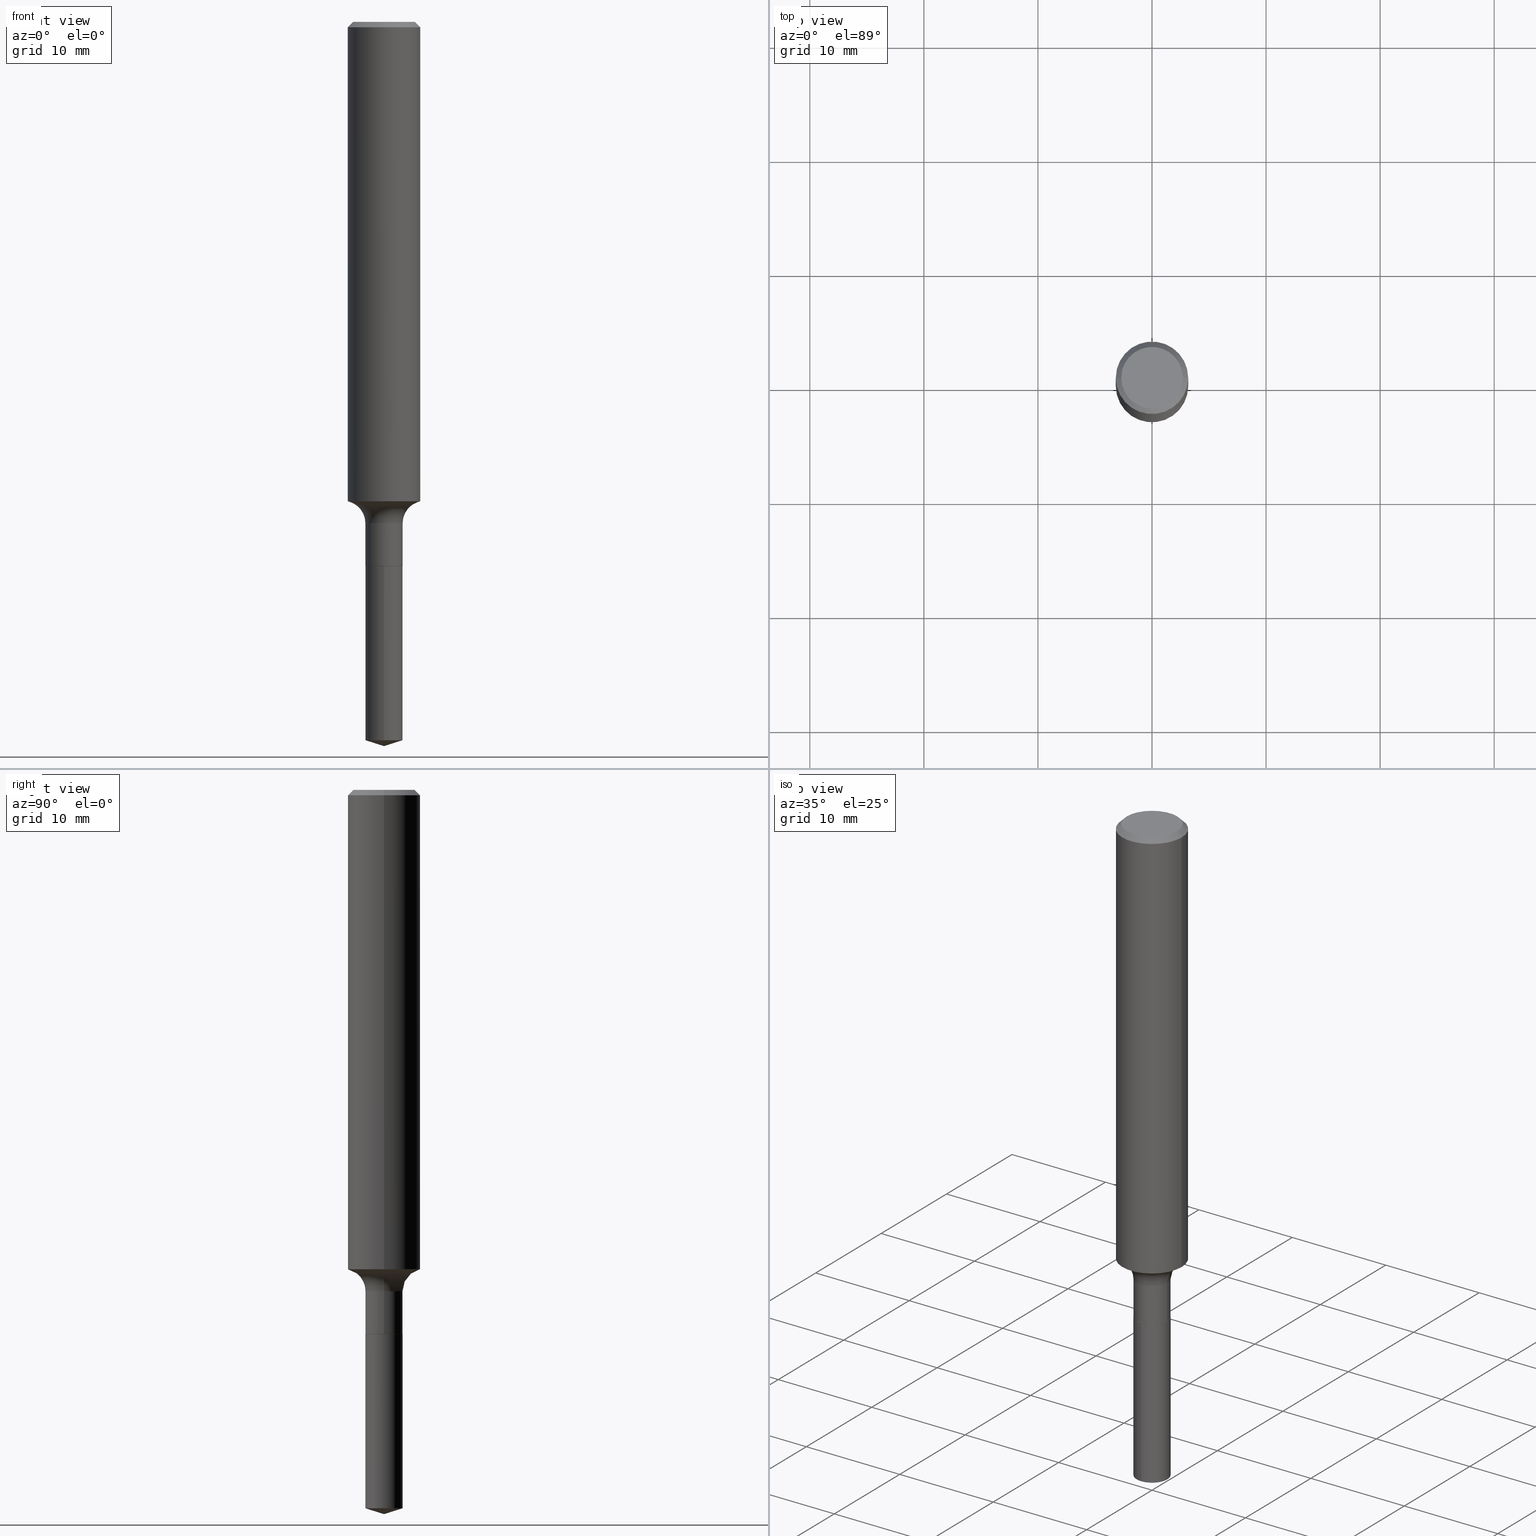
[diagram: canonical four-view strip — front | top / right | iso, engineering-drawing reading convention]
A machine part, canonical four-view strip (front | top / right | iso — engineering-drawing reading convention). The complete STEP part file that produces these views, byte-faithful:
ISO-10303-21;
HEADER;
FILE_DESCRIPTION (( 'STEP AP203' ),
    '1' );
FILE_NAME ('50005.STEP',
    '2024-04-19T12:44:49',
    ( '' ),
    ( '' ),
    'SwSTEP 2.0',
    'SolidWorks 2023',
    '' );
FILE_SCHEMA (( 'CONFIG_CONTROL_DESIGN' ));
ENDSEC;

DATA;
#1 = CARTESIAN_POINT ( 'NONE',  ( 4.593813152418779608E-29, -6.558747695016850021E-15, -1.878500000000000281 ) ) ;
#2 = DIRECTION ( 'NONE',  ( -6.982962677686268288E-15, -1.000000000000000000, 3.500519750498728887E-15 ) ) ;
#3 = CIRCLE ( 'NONE', #357, 0.06424999999999997380 ) ;
#4 = CARTESIAN_POINT ( 'NONE',  ( 0.06424999999999997380, -6.491362105177175250E-15, -1.730700000000000127 ) ) ;
#5 = CYLINDRICAL_SURFACE ( 'NONE', #123, 0.06424999999999998768 ) ;
#6 = DIRECTION ( 'NONE',  ( -2.445468806185136597E-29, 3.491481338843145583E-15, 1.000000000000000000 ) ) ;
#7 = CARTESIAN_POINT ( 'NONE',  ( 0.000000000000000000, 0.000000000000000000, 0.000000000000000000 ) ) ;
#8 = ADVANCED_FACE ( 'NONE', ( #372 ), #253, .T. ) ;
#9 = CARTESIAN_POINT ( 'NONE',  ( -0.1250000000000001110, 8.881784197001260212E-16, -6.148668862818637832E-30 ) ) ;
#10 = AXIS2_PLACEMENT_3D ( 'NONE', #38, #298, #337 ) ;
#11 = AXIS2_PLACEMENT_3D ( 'NONE', #235, #6, #391 ) ;
#12 = EDGE_CURVE ( 'NONE', #311, #251, #222, .T. ) ;
#13 = SECURITY_CLASSIFICATION_LEVEL ( 'unclassified' ) ;
#14 = ORIENTED_EDGE ( 'NONE', *, *, #242, .F. ) ;
#15 = ADVANCED_FACE ( 'NONE', ( #293 ), #32, .T. ) ;
#16 = PERSON_AND_ORGANIZATION ( #385, #321 ) ;
#17 = AXIS2_PLACEMENT_3D ( 'NONE', #124, #83, #86 ) ;
#18 = EDGE_LOOP ( 'NONE', ( #212, #54, #273, #468 ) ) ;
#19 = DATE_AND_TIME ( #59, #72 ) ;
#20 = ORIENTED_EDGE ( 'NONE', *, *, #326, .F. ) ;
#21 = PERSON_AND_ORGANIZATION ( #385, #321 ) ;
#22 = EDGE_CURVE ( 'NONE', #247, #245, #24, .T. ) ;
#23 = ORIENTED_EDGE ( 'NONE', *, *, #12, .T. ) ;
#24 = CIRCLE ( 'NONE', #144, 0.06425000000000000155 ) ;
#25 = VECTOR ( 'NONE', #236, 39.37007874015748143 ) ;
#26 = EDGE_LOOP ( 'NONE', ( #133, #62, #216, #207 ) ) ;
#27 = DIRECTION ( 'NONE',  ( 1.000000000000000000, -6.982962677686266711E-15, 4.876153107228683844E-29 ) ) ;
#28 = CARTESIAN_POINT ( 'NONE',  ( 4.046349384515295800E-29, -5.777114527383200552E-15, -1.654631363230303576 ) ) ;
#29 = EDGE_CURVE ( 'NONE', #396, #369, #168, .T. ) ;
#30 = CARTESIAN_POINT ( 'NONE',  ( -4.486553520412820437E-16, -0.06425000000000867517, -2.479742052814525533 ) ) ;
#31 = FACE_OUTER_BOUND ( 'NONE', #437, .T. ) ;
#32 = CYLINDRICAL_SURFACE ( 'NONE', #287, 0.06425000000000000155 ) ;
#33 = CIRCLE ( 'NONE', #17, 0.06425000000000000155 ) ;
#34 = CARTESIAN_POINT ( 'NONE',  ( 4.593813152418779608E-29, -6.558747695016850021E-15, -1.878500000000000281 ) ) ;
#35 = CARTESIAN_POINT ( 'NONE',  ( -8.782355238379108562E-48, 1.253887571509288664E-33, 3.591276738499616421E-19 ) ) ;
#36 = FACE_OUTER_BOUND ( 'NONE', #430, .T. ) ;
#37 = DIMENSIONAL_EXPONENTS ( 1.000000000000000000, 0.000000000000000000, 0.000000000000000000, 0.000000000000000000, 0.000000000000000000, 0.000000000000000000, 0.000000000000000000 ) ;
#38 = CARTESIAN_POINT ( 'NONE',  ( 4.593813152418779608E-29, -6.558747695016850021E-15, -1.878500000000000281 ) ) ;
#39 = DIRECTION ( 'NONE',  ( -6.982962677686268288E-15, -1.000000000000000000, 3.500519750498728887E-15 ) ) ;
#40 = DIRECTION ( 'NONE',  ( 1.000000000000000000, -6.982962677686270655E-15, 0.000000000000000000 ) ) ;
#41 = VECTOR ( 'NONE', #427, 39.37007874015748143 ) ;
#42 = DIRECTION ( 'NONE',  ( -2.438088387897960049E-29, 3.491481338843145188E-15, 1.000000000000000000 ) ) ;
#43 = CYLINDRICAL_SURFACE ( 'NONE', #445, 0.06424999999999998768 ) ;
#44 = CARTESIAN_POINT ( 'NONE',  ( 4.592590418015686246E-29, -6.557001954347427728E-15, -1.878000000000000114 ) ) ;
#45 = DIRECTION ( 'NONE',  ( 0.7071067811864147901, -2.468850131080866299E-15, 0.7071067811866802444 ) ) ;
#46 = CARTESIAN_POINT ( 'NONE',  ( 4.565237077259252214E-16, 0.06424999999999345124, -1.878500000000000503 ) ) ;
#47 = AXIS2_PLACEMENT_3D ( 'NONE', #339, #485, #147 ) ;
#48 = CIRCLE ( 'NONE', #214, 0.07800000000000006928 ) ;
#49 = EDGE_CURVE ( 'NONE', #482, #224, #478, .T. ) ;
#50 = VERTEX_POINT ( 'NONE', #259 ) ;
#51 = EDGE_LOOP ( 'NONE', ( #257, #137, #60, #14 ) ) ;
#52 = COORDINATED_UNIVERSAL_TIME_OFFSET ( 5, 0, .BEHIND. ) ;
#53 = AXIS2_PLACEMENT_3D ( 'NONE', #152, #301, #277 ) ;
#54 = ORIENTED_EDGE ( 'NONE', *, *, #94, .T. ) ;
#55 = COORDINATED_UNIVERSAL_TIME_OFFSET ( 5, 0, .BEHIND. ) ;
#56 = ADVANCED_FACE ( 'NONE', ( #105 ), #412, .F. ) ;
#57 = DIRECTION ( 'NONE',  ( -2.445468806185136877E-29, 3.491481338843145188E-15, 1.000000000000000000 ) ) ;
#58 = ORIENTED_EDGE ( 'NONE', *, *, #90, .F. ) ;
#59 = CALENDAR_DATE ( 2024, 19, 4 ) ;
#60 = ORIENTED_EDGE ( 'NONE', *, *, #220, .T. ) ;
#61 = CC_DESIGN_APPROVAL ( #211, ( #371 ) ) ;
#62 = ORIENTED_EDGE ( 'NONE', *, *, #380, .T. ) ;
#63 = ADVANCED_BREP_SHAPE_REPRESENTATION ( '50005', ( #456, #454, #486 ), #436 ) ;
#64 = EDGE_CURVE ( 'NONE', #251, #311, #424, .T. ) ;
#65 = ORIENTED_EDGE ( 'NONE', *, *, #173, .F. ) ;
#66 = DIRECTION ( 'NONE',  ( -2.445382875170297067E-29, 3.491604396947285962E-15, 1.000000000000000000 ) ) ;
#67 = CARTESIAN_POINT ( 'NONE',  ( -0.06424999999999998768, 4.565237077258642819E-16, -3.160415795488776479E-30 ) ) ;
#68 = DIRECTION ( 'NONE',  ( 1.000000000000000000, -6.982962677686272233E-15, 0.000000000000000000 ) ) ;
#69 = CARTESIAN_POINT ( 'NONE',  ( 4.565237077259102330E-16, 0.06424999999999345124, -1.878500000000000503 ) ) ;
#70 = AXIS2_PLACEMENT_3D ( 'NONE', #268, #382, #229 ) ;
#71 = DIRECTION ( 'NONE',  ( -6.982962677686265922E-15, -1.000000000000000000, 0.000000000000000000 ) ) ;
#72 = LOCAL_TIME ( 8, 44, 49.00000000000000000, #201 ) ;
#73 = EDGE_CURVE ( 'NONE', #451, #330, #205, .T. ) ;
#74 = CARTESIAN_POINT ( 'NONE',  ( 4.593813152418779608E-29, -6.558747695016850021E-15, -1.878500000000000281 ) ) ;
#75 = ADVANCED_FACE ( 'NONE', ( #348 ), #381, .F. ) ;
#76 = DIRECTION ( 'NONE',  ( 6.982962677686265922E-15, 1.000000000000000000, -3.491604396947285962E-15 ) ) ;
#77 = CARTESIAN_POINT ( 'NONE',  ( 6.113457187925742388E-29, -8.729010992368214905E-15, -2.500000000000000000 ) ) ;
#78 = CARTESIAN_POINT ( 'NONE',  ( -0.06424999999999998768, -5.843330646015765814E-15, -1.878000000000000114 ) ) ;
#79 = CARTESIAN_POINT ( 'NONE',  ( 6.113782861698965829E-29, -8.728548663070960218E-15, -2.500000000000000000 ) ) ;
#80 = CARTESIAN_POINT ( 'NONE',  ( 0.000000000000000000, 0.000000000000000000, 0.000000000000000000 ) ) ;
#81 = AXIS2_PLACEMENT_3D ( 'NONE', #254, #300, #449 ) ;
#82 = AXIS2_PLACEMENT_3D ( 'NONE', #315, #359, #467 ) ;
#83 = DIRECTION ( 'NONE',  ( -2.445382875170296787E-29, 3.491604396947285962E-15, 1.000000000000000000 ) ) ;
#84 = PRODUCT_RELATED_PRODUCT_CATEGORY ( 'detail', '', ( #417 ) ) ;
#85 = ORIENTED_EDGE ( 'NONE', *, *, #393, .T. ) ;
#86 = DIRECTION ( 'NONE',  ( -6.982962677686265922E-15, -1.000000000000000000, 4.251903492084456561E-15 ) ) ;
#87 = CARTESIAN_POINT ( 'NONE',  ( -0.06375000000000000111, -6.103127473795674352E-15, -1.878500000000000281 ) ) ;
#88 = APPROVAL_STATUS ( 'not_yet_approved' ) ;
#89 = VECTOR ( 'NONE', #232, 39.37007874015748143 ) ;
#90 = EDGE_CURVE ( 'NONE', #226, #475, #3, .T. ) ;
#91 = COORDINATED_UNIVERSAL_TIME_OFFSET ( 5, 0, .BEHIND. ) ;
#92 = ORIENTED_EDGE ( 'NONE', *, *, #407, .F. ) ;
#93 = EDGE_CURVE ( 'NONE', #224, #482, #470, .T. ) ;
#94 = EDGE_CURVE ( 'NONE', #330, #95, #188, .T. ) ;
#95 = VERTEX_POINT ( 'NONE', #78 ) ;
#96 = APPROVAL_STATUS ( 'not_yet_approved' ) ;
#97 = VECTOR ( 'NONE', #379, 39.37007874015748143 ) ;
#98 = CONICAL_SURFACE ( 'NONE', #53, 0.1250000000000000000, 0.7853981633974446153 ) ;
#99 = ORIENTED_EDGE ( 'NONE', *, *, #338, .T. ) ;
#100 = ORIENTED_EDGE ( 'NONE', *, *, #49, .F. ) ;
#101 = ORIENTED_EDGE ( 'NONE', *, *, #380, .F. ) ;
#102 = AXIS2_PLACEMENT_3D ( 'NONE', #103, #383, #27 ) ;
#103 = CARTESIAN_POINT ( 'NONE',  ( -1.756471047675821712E-47, 2.507775143018577328E-33, 7.182553476999232843E-19 ) ) ;
#104 = CARTESIAN_POINT ( 'NONE',  ( 6.064080172203654391E-29, -8.658047090253657510E-15, -2.479742052814525533 ) ) ;
#105 = FACE_OUTER_BOUND ( 'NONE', #209, .T. ) ;
#106 = DIRECTION ( 'NONE',  ( -2.445468806185136597E-29, 3.491481338843145583E-15, 1.000000000000000000 ) ) ;
#107 = EDGE_CURVE ( 'NONE', #50, #95, #443, .T. ) ;
#108 = DIRECTION ( 'NONE',  ( 2.438088387897960049E-29, -3.491481338843145188E-15, -1.000000000000000000 ) ) ;
#109 = ADVANCED_FACE ( 'NONE', ( #192 ), #129, .T. ) ;
#110 = FACE_OUTER_BOUND ( 'NONE', #128, .T. ) ;
#111 = AXIS2_PLACEMENT_3D ( 'NONE', #490, #150, #114 ) ;
#112 = ORIENTED_EDGE ( 'NONE', *, *, #426, .F. ) ;
#113 = DIRECTION ( 'NONE',  ( -6.982962677686265922E-15, -1.000000000000000000, 4.251903492084456561E-15 ) ) ;
#114 = DIRECTION ( 'NONE',  ( 1.000000000000000000, -6.982962677686266711E-15, 0.000000000000000000 ) ) ;
#115 = PRODUCT_DEFINITION_SHAPE ( 'NONE', 'NONE',  #371 ) ;
#116 = CYLINDRICAL_SURFACE ( 'NONE', #314, 0.06425000000000000155 ) ;
#117 = CYLINDRICAL_SURFACE ( 'NONE', #155, 0.1250000000000001110 ) ;
#118 = DIRECTION ( 'NONE',  ( 1.000000000000000000, -6.982962677686265922E-15, 4.876176775795935793E-29 ) ) ;
#119 = DIRECTION ( 'NONE',  ( -2.445468806185136597E-29, 3.491481338843145583E-15, 1.000000000000000000 ) ) ;
#120 = AXIS2_PLACEMENT_3D ( 'NONE', #386, #228, #40 ) ;
#121 = ORIENTED_EDGE ( 'NONE', *, *, #94, .F. ) ;
#122 = UNCERTAINTY_MEASURE_WITH_UNIT (LENGTH_MEASURE( 1.000000000000000082E-05 ), #169, 'distance_accuracy_value', 'NONE');
#123 = AXIS2_PLACEMENT_3D ( 'NONE', #158, #299, #309 ) ;
#124 = CARTESIAN_POINT ( 'NONE',  ( 4.593813152418779608E-29, -6.558747695016850021E-15, -1.878500000000000281 ) ) ;
#125 = LINE ( 'NONE', #297, #246 ) ;
#126 = CC_DESIGN_DATE_AND_TIME_ASSIGNMENT ( #433, #283, ( #140 ) ) ;
#127 = DATE_TIME_ROLE ( 'creation_date' ) ;
#128 = EDGE_LOOP ( 'NONE', ( #477, #174 ) ) ;
#129 = CONICAL_SURFACE ( 'NONE', #183, 0.06375000000000000111, 0.7853981633972606513 ) ;
#130 = CALENDAR_DATE ( 2024, 19, 4 ) ;
#131 = ORIENTED_EDGE ( 'NONE', *, *, #64, .T. ) ;
#132 = APPROVAL_DATE_TIME ( #19, #204 ) ;
#133 = ORIENTED_EDGE ( 'NONE', *, *, #198, .F. ) ;
#134 = PERSON_AND_ORGANIZATION ( #385, #321 ) ;
#135 = LINE ( 'NONE', #284, #200 ) ;
#136 = CC_DESIGN_DATE_AND_TIME_ASSIGNMENT ( #399, #127, ( #371 ) ) ;
#137 = ORIENTED_EDGE ( 'NONE', *, *, #355, .T. ) ;
#138 = APPLICATION_PROTOCOL_DEFINITION ( 'international standard', 'config_control_design', 1994, #255 ) ;
#139 = CIRCLE ( 'NONE', #199, 0.06375000000000000111 ) ;
#140 = SECURITY_CLASSIFICATION ( '', '', #13 ) ;
#141 = ORIENTED_EDGE ( 'NONE', *, *, #276, .F. ) ;
#142 = EDGE_LOOP ( 'NONE', ( #65, #361, #101 ) ) ;
#143 = CARTESIAN_POINT ( 'NONE',  ( -9.016129773595015670E-28, 1.287359602095751344E-13, 36.87007874015748143 ) ) ;
#144 = AXIS2_PLACEMENT_3D ( 'NONE', #306, #416, #71 ) ;
#145 = CARTESIAN_POINT ( 'NONE',  ( -0.1250000000000000000, 8.074050596074738982E-16, -0.01875000000000014502 ) ) ;
#146 = AXIS2_PLACEMENT_3D ( 'NONE', #341, #489, #308 ) ;
#147 = DIRECTION ( 'NONE',  ( 1.000000000000000000, -6.982962677686267499E-15, 0.000000000000000000 ) ) ;
#148 = CARTESIAN_POINT ( 'NONE',  ( 4.565237077259250241E-16, 0.06424999999999135569, -2.479742052814525533 ) ) ;
#149 = DIRECTION ( 'NONE',  ( -1.000000000000000000, 7.105427357601005014E-15, 0.000000000000000000 ) ) ;
#150 = DIRECTION ( 'NONE',  ( -2.445468806185136597E-29, 3.491481338843145583E-15, 1.000000000000000000 ) ) ;
#151 = APPROVAL_DATE_TIME ( #292, #459 ) ;
#152 = CARTESIAN_POINT ( 'NONE',  ( 4.585254011597165626E-31, -6.546527510330948997E-17, -0.01875000000000014502 ) ) ;
#153 = DIRECTION ( 'NONE',  ( -2.445382875170296787E-29, 3.491604396947285962E-15, 1.000000000000000000 ) ) ;
#154 = CARTESIAN_POINT ( 'NONE',  ( 0.1250000000000000000, -9.383356098140928781E-16, -0.01875000000000014502 ) ) ;
#155 = AXIS2_PLACEMENT_3D ( 'NONE', #7, #423, #312 ) ;
#156 = CARTESIAN_POINT ( 'NONE',  ( 4.593813152418779608E-29, -6.558747695016850021E-15, -1.878500000000000281 ) ) ;
#157 = DIRECTION ( 'NONE',  ( -2.445382875170296787E-29, 3.491604396947285962E-15, 1.000000000000000000 ) ) ;
#158 = CARTESIAN_POINT ( 'NONE',  ( 0.000000000000000000, 0.000000000000000000, 0.000000000000000000 ) ) ;
#159 = CARTESIAN_POINT ( 'NONE',  ( -0.1062499999999999972, 7.746724220558198188E-16, 7.182553476946202362E-19 ) ) ;
#160 = ADVANCED_FACE ( 'NONE', ( #225 ), #350, .T. ) ;
#161 = DIRECTION ( 'NONE',  ( 0.7071067811865449082, -7.319954787623246579E-15, -0.7071067811865501263 ) ) ;
#162 = DESIGN_CONTEXT ( 'detailed design', #460, 'design' ) ;
#163 = LOCAL_TIME ( 8, 44, 49.00000000000000000, #91 ) ;
#164 = FACE_OUTER_BOUND ( 'NONE', #51, .T. ) ;
#165 = ADVANCED_FACE ( 'NONE', ( #110 ), #420, .F. ) ;
#166 =( NAMED_UNIT ( * ) PLANE_ANGLE_UNIT ( ) SI_UNIT ( $, .RADIAN. ) );
#167 = ORIENTED_EDGE ( 'NONE', *, *, #93, .F. ) ;
#168 = CIRCLE ( 'NONE', #102, 0.1062499999999999972 ) ;
#169 =( CONVERSION_BASED_UNIT ( 'INCH', #208 ) LENGTH_UNIT ( ) NAMED_UNIT ( #37 ) );
#170 = AXIS2_PLACEMENT_3D ( 'NONE', #104, #256, #310 ) ;
#171 = ORIENTED_EDGE ( 'NONE', *, *, #90, .T. ) ;
#172 = APPROVAL_DATE_TIME ( #288, #211 ) ;
#173 = EDGE_CURVE ( 'NONE', #291, #245, #258, .T. ) ;
#174 = ORIENTED_EDGE ( 'NONE', *, *, #196, .F. ) ;
#175 = PERSON_AND_ORGANIZATION_ROLE ( 'creator' ) ;
#176 = EDGE_LOOP ( 'NONE', ( #376, #472, #141, #441 ) ) ;
#177 = AXIS2_PLACEMENT_3D ( 'NONE', #384, #263, #347 ) ;
#178 = TOROIDAL_SURFACE ( 'NONE', #82, 0.1422499999999999598, 0.07800000000000006928 ) ;
#179 = ORIENTED_EDGE ( 'NONE', *, *, #196, .T. ) ;
#180 = DIRECTION ( 'NONE',  ( 2.445382875170296507E-29, -3.491604396947285962E-15, -1.000000000000000000 ) ) ;
#181 = CARTESIAN_POINT ( 'NONE',  ( 4.593813152418779608E-29, -6.558747695016850021E-15, -1.878500000000000281 ) ) ;
#182 = FACE_OUTER_BOUND ( 'NONE', #324, .T. ) ;
#183 = AXIS2_PLACEMENT_3D ( 'NONE', #352, #457, #353 ) ;
#184 = CYLINDRICAL_SURFACE ( 'NONE', #146, 0.1250000000000001110 ) ;
#185 = AXIS2_PLACEMENT_3D ( 'NONE', #340, #157, #39 ) ;
#186 = CARTESIAN_POINT ( 'NONE',  ( 4.232372862864616324E-29, -6.042706753135832267E-15, -1.730700000000000127 ) ) ;
#187 = DIRECTION ( 'NONE',  ( -2.445382875170297067E-29, 3.491604396947285962E-15, 1.000000000000000000 ) ) ;
#188 = LINE ( 'NONE', #419, #213 ) ;
#189 = CARTESIAN_POINT ( 'NONE',  ( 4.232372862864616324E-29, -6.042706753135832267E-15, -1.730700000000000127 ) ) ;
#190 = DIRECTION ( 'NONE',  ( -2.445468806185136597E-29, 3.491481338843145583E-15, 1.000000000000000000 ) ) ;
#191 = DIRECTION ( 'NONE',  ( -2.445468806185136597E-29, 3.491481338843145583E-15, 1.000000000000000000 ) ) ;
#192 = FACE_OUTER_BOUND ( 'NONE', #413, .T. ) ;
#193 = ADVANCED_FACE ( 'NONE', ( #182 ), #377, .F. ) ;
#194 = DIRECTION ( 'NONE',  ( -2.445382875170296787E-29, 3.491604396947285962E-15, 1.000000000000000000 ) ) ;
#195 = DIRECTION ( 'NONE',  ( -2.445468806185136597E-29, 3.491481338843145583E-15, 1.000000000000000000 ) ) ;
#196 = EDGE_CURVE ( 'NONE', #330, #451, #139, .T. ) ;
#197 = LINE ( 'NONE', #145, #41 ) ;
#198 = EDGE_CURVE ( 'NONE', #245, #373, #488, .T. ) ;
#199 = AXIS2_PLACEMENT_3D ( 'NONE', #1, #106, #343 ) ;
#200 = VECTOR ( 'NONE', #57, 39.37007874015748143 ) ;
#201 = COORDINATED_UNIVERSAL_TIME_OFFSET ( 5, 0, .BEHIND. ) ;
#202 = DIRECTION ( 'NONE',  ( 1.000000000000000000, 0.000000000000000000, 0.000000000000000000 ) ) ;
#203 = ORIENTED_EDGE ( 'NONE', *, *, #64, .F. ) ;
#204 = APPROVAL ( #88, 'UNSPECIFIED' ) ;
#205 = CIRCLE ( 'NONE', #10, 0.06375000000000000111 ) ;
#206 = VECTOR ( 'NONE', #425, 39.37007874015748854 ) ;
#207 = ORIENTED_EDGE ( 'NONE', *, *, #393, .F. ) ;
#208 = LENGTH_MEASURE_WITH_UNIT ( LENGTH_MEASURE( 0.02539999999999999897 ), #395 );
#209 = EDGE_LOOP ( 'NONE', ( #367, #85 ) ) ;
#210 = PERSON_AND_ORGANIZATION_ROLE ( 'design_owner' ) ;
#211 = APPROVAL ( #365, 'UNSPECIFIED' ) ;
#212 = ORIENTED_EDGE ( 'NONE', *, *, #73, .T. ) ;
#213 = VECTOR ( 'NONE', #262, 39.37007874015748143 ) ;
#214 = AXIS2_PLACEMENT_3D ( 'NONE', #274, #446, #149 ) ;
#215 = DIRECTION ( 'NONE',  ( -6.982962677686265922E-15, -1.000000000000000000, 4.251903492084456561E-15 ) ) ;
#216 = ORIENTED_EDGE ( 'NONE', *, *, #296, .T. ) ;
#217 = LINE ( 'NONE', #374, #401 ) ;
#218 = CARTESIAN_POINT ( 'NONE',  ( 0.06424999999999998768, -4.486553520413425888E-16, 3.132943578448888130E-30 ) ) ;
#219 = ORIENTED_EDGE ( 'NONE', *, *, #355, .F. ) ;
#220 = EDGE_CURVE ( 'NONE', #475, #226, #351, .T. ) ;
#221 = CARTESIAN_POINT ( 'NONE',  ( 4.593813152418779608E-29, -6.558747695016850021E-15, -1.878500000000000281 ) ) ;
#222 = CIRCLE ( 'NONE', #329, 0.1250000000000001943 ) ;
#223 = LOCAL_TIME ( 8, 44, 49.00000000000000000, #244 ) ;
#224 = VERTEX_POINT ( 'NONE', #154 ) ;
#225 = FACE_OUTER_BOUND ( 'NONE', #18, .T. ) ;
#226 = VERTEX_POINT ( 'NONE', #4 ) ;
#227 = FACE_OUTER_BOUND ( 'NONE', #142, .T. ) ;
#228 = DIRECTION ( 'NONE',  ( -2.445468806185136597E-29, 3.491481338843145583E-15, 1.000000000000000000 ) ) ;
#229 = DIRECTION ( 'NONE',  ( 1.000000000000000000, -6.982962677686269077E-15, 4.883557194083113462E-29 ) ) ;
#230 = DIRECTION ( 'NONE',  ( 1.000000000000000000, -6.982962677686270655E-15, 0.000000000000000000 ) ) ;
#231 = CONICAL_SURFACE ( 'NONE', #466, 0.1250000000000000000, 0.7853981633974446153 ) ;
#232 = DIRECTION ( 'NONE',  ( -2.445468806185136877E-29, 3.491481338843145188E-15, 1.000000000000000000 ) ) ;
#233 = ADVANCED_FACE ( 'NONE', ( #415 ), #231, .T. ) ;
#234 = ORIENTED_EDGE ( 'NONE', *, *, #333, .T. ) ;
#235 = CARTESIAN_POINT ( 'NONE',  ( -1.756471047675821712E-47, 2.507775143018577328E-33, 7.182553476999232843E-19 ) ) ;
#236 = DIRECTION ( 'NONE',  ( -2.445468806185136877E-29, 3.491481338843145188E-15, 1.000000000000000000 ) ) ;
#237 = CLOSED_SHELL ( 'NONE', ( #160, #233, #474, #422, #270, #345, #193, #389, #302, #75, #165, #109 ) ) ;
#238 = VECTOR ( 'NONE', #45, 39.37007874015748143 ) ;
#239 = APPROVAL_ROLE ( '' ) ;
#240 = ORIENTED_EDGE ( 'NONE', *, *, #368, .F. ) ;
#241 = CALENDAR_DATE ( 2024, 19, 4 ) ;
#242 = EDGE_CURVE ( 'NONE', #251, #226, #479, .T. ) ;
#243 = ORIENTED_EDGE ( 'NONE', *, *, #344, .T. ) ;
#244 = COORDINATED_UNIVERSAL_TIME_OFFSET ( 5, 0, .BEHIND. ) ;
#245 = VERTEX_POINT ( 'NONE', #148 ) ;
#246 = VECTOR ( 'NONE', #161, 39.37007874015748143 ) ;
#247 = VERTEX_POINT ( 'NONE', #30 ) ;
#248 = ADVANCED_FACE ( 'NONE', ( #448 ), #116, .T. ) ;
#249 = CALENDAR_DATE ( 2024, 19, 4 ) ;
#250 = ADVANCED_FACE ( 'NONE', ( #227 ), #261, .T. ) ;
#251 = VERTEX_POINT ( 'NONE', #418 ) ;
#252 = ORIENTED_EDGE ( 'NONE', *, *, #407, .T. ) ;
#253 = CONICAL_SURFACE ( 'NONE', #400, 124.8659371009141950, 1.265363707695889683 ) ;
#254 = CARTESIAN_POINT ( 'NONE',  ( 4.585254011597165626E-31, -6.546527510330948997E-17, -0.01875000000000014502 ) ) ;
#255 = APPLICATION_CONTEXT ( 'configuration controlled 3d designs of mechanical parts and assemblies' ) ;
#256 = DIRECTION ( 'NONE',  ( -2.445382875170296787E-29, 3.491604396947285962E-15, 1.000000000000000000 ) ) ;
#257 = ORIENTED_EDGE ( 'NONE', *, *, #12, .F. ) ;
#258 = LINE ( 'NONE', #79, #97 ) ;
#259 = CARTESIAN_POINT ( 'NONE',  ( 0.06424999999999998768, -7.005657306388770712E-15, -1.878000000000000114 ) ) ;
#260 = DIRECTION ( 'NONE',  ( 1.000000000000000000, -6.982962677686272233E-15, 0.000000000000000000 ) ) ;
#261 = CONICAL_SURFACE ( 'NONE', #185, 124.8659371009141950, 1.265363707695889683 ) ;
#262 = DIRECTION ( 'NONE',  ( -0.7071067811864147901, 7.493145998869874533E-15, 0.7071067811866802444 ) ) ;
#263 = DIRECTION ( 'NONE',  ( -6.982962677686266711E-15, -1.000000000000000000, 3.491481338843145583E-15 ) ) ;
#264 = CC_DESIGN_PERSON_AND_ORGANIZATION_ASSIGNMENT ( #279, #175, ( #289 ) ) ;
#265 = DIRECTION ( 'NONE',  ( 1.000000000000000000, -6.982962677686267499E-15, 0.000000000000000000 ) ) ;
#266 = DIRECTION ( 'NONE',  ( -2.445468806185136597E-29, 3.491481338843145583E-15, 1.000000000000000000 ) ) ;
#267 = LINE ( 'NONE', #67, #363 ) ;
#268 = CARTESIAN_POINT ( 'NONE',  ( 4.232372862864616324E-29, -6.042706753135832267E-15, -1.730700000000000127 ) ) ;
#269 = CARTESIAN_POINT ( 'NONE',  ( 0.1062499999999999972, -8.259777185439879685E-16, 7.182553477054055401E-19 ) ) ;
#270 = ADVANCED_FACE ( 'NONE', ( #36 ), #5, .T. ) ;
#271 = LOCAL_TIME ( 8, 44, 49.00000000000000000, #52 ) ;
#272 = APPROVAL_PERSON_ORGANIZATION ( #435, #459, #404 ) ;
#273 = ORIENTED_EDGE ( 'NONE', *, *, #107, .F. ) ;
#274 = CARTESIAN_POINT ( 'NONE',  ( -0.1422499999999999598, -5.031959711517090629E-15, -1.730700000000000127 ) ) ;
#275 = DIRECTION ( 'NONE',  ( -2.445468806185136877E-29, 3.491481338843145188E-15, 1.000000000000000000 ) ) ;
#276 = EDGE_CURVE ( 'NONE', #327, #373, #394, .T. ) ;
#277 = DIRECTION ( 'NONE',  ( -1.000000000000000000, 6.982962677686266711E-15, 0.000000000000000000 ) ) ;
#278 = AXIS2_PLACEMENT_3D ( 'NONE', #44, #119, #230 ) ;
#279 = PERSON_AND_ORGANIZATION ( #385, #321 ) ;
#280 = ORIENTED_EDGE ( 'NONE', *, *, #344, .F. ) ;
#281 = PERSON_AND_ORGANIZATION ( #385, #321 ) ;
#282 = ORIENTED_EDGE ( 'NONE', *, *, #93, .T. ) ;
#283 = DATE_TIME_ROLE ( 'classification_date' ) ;
#284 = CARTESIAN_POINT ( 'NONE',  ( 0.1250000000000001110, -8.728703347107841277E-16, 6.095220969744924646E-30 ) ) ;
#285 = CC_DESIGN_PERSON_AND_ORGANIZATION_ASSIGNMENT ( #134, #428, ( #371 ) ) ;
#286 = EDGE_LOOP ( 'NONE', ( #20, #364, #317 ) ) ;
#287 = AXIS2_PLACEMENT_3D ( 'NONE', #156, #153, #215 ) ;
#288 = DATE_AND_TIME ( #130, #223 ) ;
#289 = PRODUCT_DEFINITION_FORMATION_WITH_SPECIFIED_SOURCE ( 'ANY', '', #417, .NOT_KNOWN. ) ;
#290 = ORIENTED_EDGE ( 'NONE', *, *, #440, .T. ) ;
#291 = VERTEX_POINT ( 'NONE', #77 ) ;
#292 = DATE_AND_TIME ( #249, #452 ) ;
#293 = FACE_OUTER_BOUND ( 'NONE', #176, .T. ) ;
#294 = AXIS2_PLACEMENT_3D ( 'NONE', #189, #191, #260 ) ;
#295 = CC_DESIGN_APPROVAL ( #459, ( #140 ) ) ;
#296 = EDGE_CURVE ( 'NONE', #247, #327, #217, .T. ) ;
#297 = CARTESIAN_POINT ( 'NONE',  ( 0.1250000000000000000, -9.230275248247509846E-16, -0.01875000000000014502 ) ) ;
#298 = DIRECTION ( 'NONE',  ( -2.445468806185136597E-29, 3.491481338843145583E-15, 1.000000000000000000 ) ) ;
#299 = DIRECTION ( 'NONE',  ( -2.445468806185136597E-29, 3.491481338843145583E-15, 1.000000000000000000 ) ) ;
#300 = DIRECTION ( 'NONE',  ( -2.445468806185136597E-29, 3.491481338843145583E-15, 1.000000000000000000 ) ) ;
#301 = DIRECTION ( 'NONE',  ( 2.445468806185136597E-29, -3.491481338843145583E-15, -1.000000000000000000 ) ) ;
#302 = ADVANCED_FACE ( 'NONE', ( #491 ), #98, .T. ) ;
#303 = ORIENTED_EDGE ( 'NONE', *, *, #440, .F. ) ;
#304 = EDGE_CURVE ( 'NONE', #251, #224, #135, .T. ) ;
#305 = DIRECTION ( 'NONE',  ( 2.445468806185136597E-29, -3.491481338843145583E-15, -1.000000000000000000 ) ) ;
#306 = CARTESIAN_POINT ( 'NONE',  ( 6.064080172203654391E-29, -8.658047090253657510E-15, -2.479742052814525533 ) ) ;
#307 = DIRECTION ( 'NONE',  ( -6.982962677686265922E-15, -1.000000000000000000, 4.251903492084456561E-15 ) ) ;
#308 = DIRECTION ( 'NONE',  ( 1.000000000000000000, -6.982962677686266711E-15, 4.876176775795935232E-29 ) ) ;
#309 = DIRECTION ( 'NONE',  ( 1.000000000000000000, -6.982962677686267499E-15, 4.876176775795935793E-29 ) ) ;
#310 = DIRECTION ( 'NONE',  ( -6.982962677686265922E-15, -1.000000000000000000, 0.000000000000000000 ) ) ;
#311 = VERTEX_POINT ( 'NONE', #336 ) ;
#312 = DIRECTION ( 'NONE',  ( 1.000000000000000000, -6.982962677686266711E-15, 4.876176775795935232E-29 ) ) ;
#313 = AXIS2_PLACEMENT_3D ( 'NONE', #74, #266, #450 ) ;
#314 = AXIS2_PLACEMENT_3D ( 'NONE', #34, #194, #307 ) ;
#315 = CARTESIAN_POINT ( 'NONE',  ( 4.232372862864616324E-29, -6.042706753135832267E-15, -1.730700000000000127 ) ) ;
#316 =( NAMED_UNIT ( * ) SI_UNIT ( $, .STERADIAN. ) SOLID_ANGLE_UNIT ( ) );
#317 = ORIENTED_EDGE ( 'NONE', *, *, #22, .F. ) ;
#318 = CC_DESIGN_PERSON_AND_ORGANIZATION_ASSIGNMENT ( #469, #438, ( #140 ) ) ;
#319 = MECHANICAL_CONTEXT ( 'NONE', #255, 'mechanical' ) ;
#320 = AXIS2_PLACEMENT_3D ( 'NONE', #35, #108, #447 ) ;
#321 = ORGANIZATION ( 'UNSPECIFIED', 'UNSPECIFIED', '' ) ;
#322 = ORIENTED_EDGE ( 'NONE', *, *, #333, .F. ) ;
#323 = DIRECTION ( 'NONE',  ( 0.000000000000000000, 0.000000000000000000, 1.000000000000000000 ) ) ;
#324 = EDGE_LOOP ( 'NONE', ( #219, #203, #434, #171 ) ) ;
#325 = EDGE_CURVE ( 'NONE', #451, #50, #483, .T. ) ;
#326 = EDGE_CURVE ( 'NONE', #291, #247, #388, .T. ) ;
#327 = VERTEX_POINT ( 'NONE', #356 ) ;
#328 = PERSON_AND_ORGANIZATION_ROLE ( 'design_supplier' ) ;
#329 = AXIS2_PLACEMENT_3D ( 'NONE', #28, #190, #265 ) ;
#330 = VERTEX_POINT ( 'NONE', #87 ) ;
#331 = CLOSED_SHELL ( 'NONE', ( #15, #8, #250, #248, #56 ) ) ;
#332 = CIRCLE ( 'NONE', #170, 0.06425000000000000155 ) ;
#333 = EDGE_CURVE ( 'NONE', #396, #482, #197, .T. ) ;
#334 = ORIENTED_EDGE ( 'NONE', *, *, #220, .F. ) ;
#335 = SHAPE_DEFINITION_REPRESENTATION ( #115, #63 ) ;
#336 = CARTESIAN_POINT ( 'NONE',  ( -0.1250000000000003053, -4.888936107683072164E-15, -1.654631363230303576 ) ) ;
#337 = DIRECTION ( 'NONE',  ( 1.000000000000000000, -6.982962677686260400E-15, 0.000000000000000000 ) ) ;
#338 = EDGE_CURVE ( 'NONE', #311, #482, #462, .T. ) ;
#339 = CARTESIAN_POINT ( 'NONE',  ( 4.046349384515295800E-29, -5.777114527383200552E-15, -1.654631363230303576 ) ) ;
#340 = CARTESIAN_POINT ( 'NONE',  ( -9.016129773595015670E-28, 1.287359602095751344E-13, 36.87007874015748143 ) ) ;
#341 = CARTESIAN_POINT ( 'NONE',  ( 0.000000000000000000, 0.000000000000000000, 0.000000000000000000 ) ) ;
#342 = ORIENTED_EDGE ( 'NONE', *, *, #107, .T. ) ;
#343 = DIRECTION ( 'NONE',  ( 1.000000000000000000, -6.982962677686260400E-15, 0.000000000000000000 ) ) ;
#344 = EDGE_CURVE ( 'NONE', #369, #224, #125, .T. ) ;
#345 = ADVANCED_FACE ( 'NONE', ( #392 ), #43, .T. ) ;
#346 = ORIENTED_EDGE ( 'NONE', *, *, #325, .T. ) ;
#347 = DIRECTION ( 'NONE',  ( 1.000000000000000000, -6.982962677686264344E-15, 0.000000000000000000 ) ) ;
#348 = FACE_OUTER_BOUND ( 'NONE', #439, .T. ) ;
#349 = CARTESIAN_POINT ( 'NONE',  ( 4.585254011597165626E-31, -6.546527510330948997E-17, -0.01875000000000014502 ) ) ;
#350 = CONICAL_SURFACE ( 'NONE', #313, 0.06375000000000000111, 0.7853981633972606513 ) ;
#351 = CIRCLE ( 'NONE', #294, 0.06424999999999997380 ) ;
#352 = CARTESIAN_POINT ( 'NONE',  ( 4.593813152418779608E-29, -6.558747695016850021E-15, -1.878500000000000281 ) ) ;
#353 = DIRECTION ( 'NONE',  ( 1.000000000000000000, -6.982962677686260400E-15, 0.000000000000000000 ) ) ;
#354 = DIRECTION ( 'NONE',  ( 1.000000000000000000, -6.982962677686267499E-15, 4.876176775795935793E-29 ) ) ;
#355 = EDGE_CURVE ( 'NONE', #311, #475, #48, .T. ) ;
#356 = CARTESIAN_POINT ( 'NONE',  ( -4.486553520412967363E-16, -0.06425000000000656575, -1.878499999999999837 ) ) ;
#357 = AXIS2_PLACEMENT_3D ( 'NONE', #186, #455, #68 ) ;
#358 = CC_DESIGN_APPROVAL ( #204, ( #289 ) ) ;
#359 = DIRECTION ( 'NONE',  ( -2.445468806185136597E-29, 3.491481338843145583E-15, 1.000000000000000000 ) ) ;
#360 = CARTESIAN_POINT ( 'NONE',  ( 0.000000000000000000, 0.000000000000000000, 0.000000000000000000 ) ) ;
#361 = ORIENTED_EDGE ( 'NONE', *, *, #326, .T. ) ;
#362 = AXIS2_PLACEMENT_3D ( 'NONE', #181, #180, #76 ) ;
#363 = VECTOR ( 'NONE', #275, 39.37007874015748143 ) ;
#364 = ORIENTED_EDGE ( 'NONE', *, *, #173, .T. ) ;
#365 = APPROVAL_STATUS ( 'not_yet_approved' ) ;
#366 = EDGE_LOOP ( 'NONE', ( #92, #243, #282, #322 ) ) ;
#367 = ORIENTED_EDGE ( 'NONE', *, *, #276, .T. ) ;
#368 = EDGE_CURVE ( 'NONE', #95, #50, #370, .T. ) ;
#369 = VERTEX_POINT ( 'NONE', #269 ) ;
#370 = CIRCLE ( 'NONE', #278, 0.06424999999999998768 ) ;
#371 = PRODUCT_DEFINITION ( 'UNKNOWN', '', #289, #162 ) ;
#372 = FACE_OUTER_BOUND ( 'NONE', #286, .T. ) ;
#373 = VERTEX_POINT ( 'NONE', #46 ) ;
#374 = CARTESIAN_POINT ( 'NONE',  ( -4.486553520412967363E-16, -0.06425000000000656575, -1.878499999999999837 ) ) ;
#375 = CARTESIAN_POINT ( 'NONE',  ( 0.06375000000000000111, -7.003911565719349208E-15, -1.878500000000000281 ) ) ;
#376 = ORIENTED_EDGE ( 'NONE', *, *, #22, .T. ) ;
#377 = TOROIDAL_SURFACE ( 'NONE', #70, 0.1422499999999999598, 0.07800000000000006928 ) ;
#378 = CIRCLE ( 'NONE', #11, 0.1062499999999999972 ) ;
#379 = DIRECTION ( 'NONE',  ( 6.776566513254252615E-15, 0.9537169507482281539, 0.3007057995042690668 ) ) ;
#380 = EDGE_CURVE ( 'NONE', #245, #247, #332, .T. ) ;
#381 = PLANE ( 'NONE',  #320 ) ;
#382 = DIRECTION ( 'NONE',  ( -2.445468806185136597E-29, 3.491481338843145583E-15, 1.000000000000000000 ) ) ;
#383 = DIRECTION ( 'NONE',  ( -2.445468806185136597E-29, 3.491481338843145583E-15, 1.000000000000000000 ) ) ;
#384 = CARTESIAN_POINT ( 'NONE',  ( 0.1422499999999999598, -7.036033194036703296E-15, -1.730700000000000127 ) ) ;
#385 = PERSON ( 'UNSPECIFIED', 'UNSPECIFIED', 'UNSPECIFIED', ('UNSPECIFIED'), ('UNSPECIFIED'), ('UNSPECIFIED') ) ;
#386 = CARTESIAN_POINT ( 'NONE',  ( 4.592590418015686246E-29, -6.557001954347427728E-15, -1.878000000000000114 ) ) ;
#387 = DIRECTION ( 'NONE',  ( -1.000000000000000000, 6.982962677686266711E-15, 0.000000000000000000 ) ) ;
#388 = LINE ( 'NONE', #464, #206 ) ;
#389 = ADVANCED_FACE ( 'NONE', ( #390 ), #117, .T. ) ;
#390 = FACE_OUTER_BOUND ( 'NONE', #484, .T. ) ;
#391 = DIRECTION ( 'NONE',  ( 1.000000000000000000, -6.982962677686266711E-15, 4.876153107228683844E-29 ) ) ;
#392 = FACE_OUTER_BOUND ( 'NONE', #398, .T. ) ;
#393 = EDGE_CURVE ( 'NONE', #373, #327, #33, .T. ) ;
#394 = CIRCLE ( 'NONE', #414, 0.06425000000000000155 ) ;
#395 =( LENGTH_UNIT ( ) NAMED_UNIT ( * ) SI_UNIT ( $, .METRE. ) );
#396 = VERTEX_POINT ( 'NONE', #159 ) ;
#397 = PERSON_AND_ORGANIZATION ( #385, #321 ) ;
#398 = EDGE_LOOP ( 'NONE', ( #112, #402, #290, #334 ) ) ;
#399 = DATE_AND_TIME ( #473, #271 ) ;
#400 = AXIS2_PLACEMENT_3D ( 'NONE', #143, #492, #2 ) ;
#401 = VECTOR ( 'NONE', #187, 39.37007874015748143 ) ;
#402 = ORIENTED_EDGE ( 'NONE', *, *, #368, .T. ) ;
#403 = CC_DESIGN_PERSON_AND_ORGANIZATION_ASSIGNMENT ( #281, #328, ( #289 ) ) ;
#404 = APPROVAL_ROLE ( '' ) ;
#405 = ORIENTED_EDGE ( 'NONE', *, *, #338, .F. ) ;
#406 = ORIENTED_EDGE ( 'NONE', *, *, #29, .F. ) ;
#407 = EDGE_CURVE ( 'NONE', #369, #396, #378, .T. ) ;
#408 = ORIENTED_EDGE ( 'NONE', *, *, #304, .T. ) ;
#409 = APPROVAL_PERSON_ORGANIZATION ( #21, #204, #239 ) ;
#410 = EDGE_LOOP ( 'NONE', ( #280, #406, #234, #481 ) ) ;
#411 = LINE ( 'NONE', #218, #25 ) ;
#412 = PLANE ( 'NONE',  #362 ) ;
#413 = EDGE_LOOP ( 'NONE', ( #121, #179, #346, #240 ) ) ;
#414 = AXIS2_PLACEMENT_3D ( 'NONE', #453, #461, #113 ) ;
#415 = FACE_OUTER_BOUND ( 'NONE', #366, .T. ) ;
#416 = DIRECTION ( 'NONE',  ( -2.445382875170296787E-29, 3.491604396947285962E-15, 1.000000000000000000 ) ) ;
#417 = PRODUCT ( '50005', '50005', '', ( #319 ) ) ;
#418 = CARTESIAN_POINT ( 'NONE',  ( 0.1250000000000003053, -6.649984862093984679E-15, -1.654631363230303576 ) ) ;
#419 = CARTESIAN_POINT ( 'NONE',  ( -0.06375000000000000111, -6.105776700969786342E-15, -1.878500000000000281 ) ) ;
#420 = PLANE ( 'NONE',  #465 ) ;
#421 = CARTESIAN_POINT ( 'NONE',  ( -0.1250000000000000000, -2.033111481543127644E-15, -0.01875000000000014502 ) ) ;
#422 = ADVANCED_FACE ( 'NONE', ( #164 ), #178, .F. ) ;
#423 = DIRECTION ( 'NONE',  ( -2.445468806185136597E-29, 3.491481338843145583E-15, 1.000000000000000000 ) ) ;
#424 = CIRCLE ( 'NONE', #47, 0.1250000000000001943 ) ;
#425 = DIRECTION ( 'NONE',  ( -6.659769872151627355E-15, -0.9537169507482260444, 0.3007057995042756726 ) ) ;
#426 = EDGE_CURVE ( 'NONE', #95, #475, #267, .T. ) ;
#427 = DIRECTION ( 'NONE',  ( -0.7071067811865449082, 2.468850131082229450E-15, -0.7071067811865501263 ) ) ;
#428 = PERSON_AND_ORGANIZATION_ROLE ( 'creator' ) ;
#429 = APPROVAL_PERSON_ORGANIZATION ( #397, #211, #476 ) ;
#430 = EDGE_LOOP ( 'NONE', ( #342, #432, #58, #303 ) ) ;
#431 = APPLICATION_PROTOCOL_DEFINITION ( 'international standard', 'config_control_design', 1994, #460 ) ;
#432 = ORIENTED_EDGE ( 'NONE', *, *, #426, .T. ) ;
#433 = DATE_AND_TIME ( #241, #163 ) ;
#434 = ORIENTED_EDGE ( 'NONE', *, *, #242, .T. ) ;
#435 = PERSON_AND_ORGANIZATION ( #385, #321 ) ;
#436 =( GEOMETRIC_REPRESENTATION_CONTEXT ( 3 ) GLOBAL_UNCERTAINTY_ASSIGNED_CONTEXT ( ( #122 ) ) GLOBAL_UNIT_ASSIGNED_CONTEXT ( ( #169, #166, #316 ) ) REPRESENTATION_CONTEXT ( 'NONE', 'WORKASPACE' ) );
#437 = EDGE_LOOP ( 'NONE', ( #131, #99, #167, #463 ) ) ;
#438 = PERSON_AND_ORGANIZATION_ROLE ( 'classification_officer' ) ;
#439 = EDGE_LOOP ( 'NONE', ( #444, #252 ) ) ;
#440 = EDGE_CURVE ( 'NONE', #50, #226, #411, .T. ) ;
#441 = ORIENTED_EDGE ( 'NONE', *, *, #296, .F. ) ;
#442 = CARTESIAN_POINT ( 'NONE',  ( 0.06375000000000000111, -7.003911565719349208E-15, -1.878500000000000281 ) ) ;
#443 = CIRCLE ( 'NONE', #120, 0.06424999999999998768 ) ;
#444 = ORIENTED_EDGE ( 'NONE', *, *, #29, .T. ) ;
#445 = AXIS2_PLACEMENT_3D ( 'NONE', #80, #195, #354 ) ;
#446 = DIRECTION ( 'NONE',  ( 7.105427357601001859E-15, 1.000000000000000000, -3.491481338843145583E-15 ) ) ;
#447 = DIRECTION ( 'NONE',  ( -1.000000000000000000, 6.982962677686265922E-15, -4.876176775795935793E-29 ) ) ;
#448 = FACE_OUTER_BOUND ( 'NONE', #26, .T. ) ;
#449 = DIRECTION ( 'NONE',  ( 1.000000000000000000, -6.982962677686266711E-15, 0.000000000000000000 ) ) ;
#450 = DIRECTION ( 'NONE',  ( 1.000000000000000000, -6.982962677686260400E-15, 0.000000000000000000 ) ) ;
#451 = VERTEX_POINT ( 'NONE', #375 ) ;
#452 = LOCAL_TIME ( 8, 44, 49.00000000000000000, #55 ) ;
#453 = CARTESIAN_POINT ( 'NONE',  ( 4.593813152418779608E-29, -6.558747695016850021E-15, -1.878500000000000281 ) ) ;
#454 = MANIFOLD_SOLID_BREP ( 'Body-Move/Copy2[2]', #237 ) ;
#455 = DIRECTION ( 'NONE',  ( -2.445468806185136597E-29, 3.491481338843145583E-15, 1.000000000000000000 ) ) ;
#456 = MANIFOLD_SOLID_BREP ( 'Body-Move/Copy2[1]', #331 ) ;
#457 = DIRECTION ( 'NONE',  ( -2.445468806185136597E-29, 3.491481338843145583E-15, 1.000000000000000000 ) ) ;
#458 = CARTESIAN_POINT ( 'NONE',  ( -0.06424999999999997380, -5.843330646015765814E-15, -1.730700000000000127 ) ) ;
#459 = APPROVAL ( #96, 'UNSPECIFIED' ) ;
#460 = APPLICATION_CONTEXT ( 'configuration controlled 3d designs of mechanical parts and assemblies' ) ;
#461 = DIRECTION ( 'NONE',  ( -2.445382875170296787E-29, 3.491604396947285962E-15, 1.000000000000000000 ) ) ;
#462 = LINE ( 'NONE', #9, #89 ) ;
#463 = ORIENTED_EDGE ( 'NONE', *, *, #304, .F. ) ;
#464 = CARTESIAN_POINT ( 'NONE',  ( 6.113457187925742388E-29, -8.729010992368214905E-15, -2.500000000000000000 ) ) ;
#465 = AXIS2_PLACEMENT_3D ( 'NONE', #221, #42, #118 ) ;
#466 = AXIS2_PLACEMENT_3D ( 'NONE', #349, #305, #387 ) ;
#467 = DIRECTION ( 'NONE',  ( 1.000000000000000000, -6.982962677686269077E-15, 4.883557194083113462E-29 ) ) ;
#468 = ORIENTED_EDGE ( 'NONE', *, *, #325, .F. ) ;
#469 = PERSON_AND_ORGANIZATION ( #385, #321 ) ;
#470 = CIRCLE ( 'NONE', #111, 0.1250000000000000000 ) ;
#471 = VECTOR ( 'NONE', #66, 39.37007874015748143 ) ;
#472 = ORIENTED_EDGE ( 'NONE', *, *, #198, .T. ) ;
#473 = CALENDAR_DATE ( 2024, 19, 4 ) ;
#474 = ADVANCED_FACE ( 'NONE', ( #31 ), #184, .T. ) ;
#475 = VERTEX_POINT ( 'NONE', #458 ) ;
#476 = APPROVAL_ROLE ( '' ) ;
#477 = ORIENTED_EDGE ( 'NONE', *, *, #73, .F. ) ;
#478 = CIRCLE ( 'NONE', #81, 0.1250000000000000000 ) ;
#479 = CIRCLE ( 'NONE', #177, 0.07800000000000006928 ) ;
#480 = CC_DESIGN_PERSON_AND_ORGANIZATION_ASSIGNMENT ( #16, #210, ( #417 ) ) ;
#481 = ORIENTED_EDGE ( 'NONE', *, *, #49, .T. ) ;
#482 = VERTEX_POINT ( 'NONE', #421 ) ;
#483 = LINE ( 'NONE', #442, #238 ) ;
#484 = EDGE_LOOP ( 'NONE', ( #405, #23, #408, #100 ) ) ;
#485 = DIRECTION ( 'NONE',  ( -2.445468806185136597E-29, 3.491481338843145583E-15, 1.000000000000000000 ) ) ;
#486 = AXIS2_PLACEMENT_3D ( 'NONE', #360, #323, #202 ) ;
#487 = CC_DESIGN_SECURITY_CLASSIFICATION ( #140, ( #289 ) ) ;
#488 = LINE ( 'NONE', #69, #471 ) ;
#489 = DIRECTION ( 'NONE',  ( -2.445468806185136597E-29, 3.491481338843145583E-15, 1.000000000000000000 ) ) ;
#490 = CARTESIAN_POINT ( 'NONE',  ( 4.585254011597165626E-31, -6.546527510330948997E-17, -0.01875000000000014502 ) ) ;
#491 = FACE_OUTER_BOUND ( 'NONE', #410, .T. ) ;
#492 = DIRECTION ( 'NONE',  ( -2.445382875170296787E-29, 3.491604396947285962E-15, 1.000000000000000000 ) ) ;
ENDSEC;
END-ISO-10303-21;
